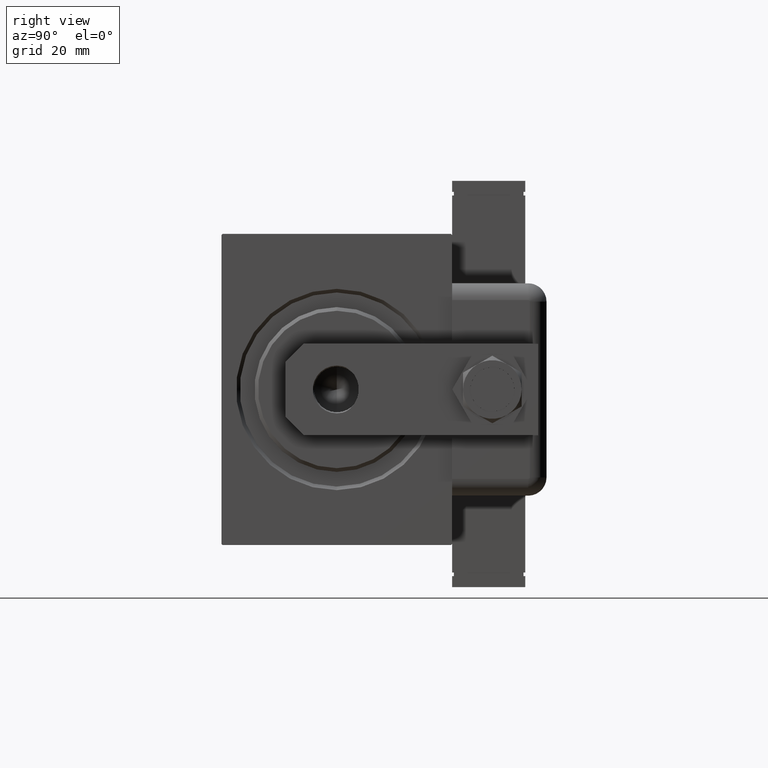
[diagram: clean part render]
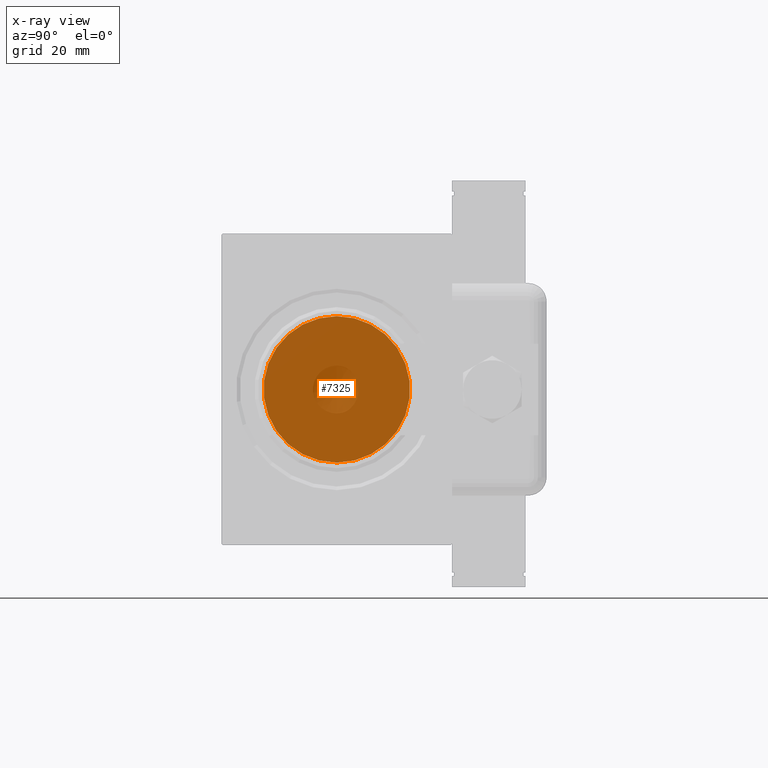
[diagram: x-ray — body ghosted, one internal face saturated and labeled with its STEP entity id]
A machine part, right view, then the same camera in x-ray: the body is ghosted and one INTERNAL B-rep face — a face not visible from any outside direction — is saturated and labeled: STEP entity #7325.
In plain terms, the highlighted planar face has unit normal (1, 0, -0).
Its self-contained STEP definition (entity closure, byte-faithful):
#1036 = CARTESIAN_POINT ( 'NONE',  ( 76.00000000000000000, 0.000000000000000000, 20.00000000000000000 ) ) ;
#1413 = AXIS2_PLACEMENT_3D ( 'NONE', #15484, #37141, #5137 ) ;
#3248 = CIRCLE ( 'NONE', #53333, 20.00000000000000000 ) ;
#5137 = DIRECTION ( 'NONE',  ( 0.000000000000000000, 0.000000000000000000, 1.000000000000000000 ) ) ;
#6293 = CARTESIAN_POINT ( 'NONE',  ( 76.00000000000000000, 0.000000000000000000, 0.000000000000000000 ) ) ;
#7325 = ADVANCED_FACE ( 'NONE', ( #28494 ), #42449, .T. ) ;
#15484 = CARTESIAN_POINT ( 'NONE',  ( 76.00000000000000000, 0.000000000000000000, 0.000000000000000000 ) ) ;
#20798 = DIRECTION ( 'NONE',  ( -1.000000000000000000, 0.000000000000000000, 0.000000000000000000 ) ) ;
#22286 = CIRCLE ( 'NONE', #43151, 20.00000000000000000 ) ;
#25463 = DIRECTION ( 'NONE',  ( -1.000000000000000000, 0.000000000000000000, 0.000000000000000000 ) ) ;
#26039 = CARTESIAN_POINT ( 'NONE',  ( 76.00000000000000000, 0.000000000000000000, 0.000000000000000000 ) ) ;
#28494 = FACE_OUTER_BOUND ( 'NONE', #36451, .T. ) ;
#29972 = DIRECTION ( 'NONE',  ( 0.000000000000000000, 0.000000000000000000, 1.000000000000000000 ) ) ;
#30492 = DIRECTION ( 'NONE',  ( 0.000000000000000000, 0.000000000000000000, 1.000000000000000000 ) ) ;
#34559 = ORIENTED_EDGE ( 'NONE', *, *, #35521, .T. ) ;
#35521 = EDGE_CURVE ( 'NONE', #47244, #58731, #3248, .T. ) ;
#36451 = EDGE_LOOP ( 'NONE', ( #57145, #34559 ) ) ;
#37141 = DIRECTION ( 'NONE',  ( -1.000000000000000000, 0.000000000000000000, 0.000000000000000000 ) ) ;
#42449 = PLANE ( 'NONE',  #1413 ) ;
#43151 = AXIS2_PLACEMENT_3D ( 'NONE', #6293, #20798, #29972 ) ;
#43197 = EDGE_CURVE ( 'NONE', #58731, #47244, #22286, .T. ) ;
#46011 = CARTESIAN_POINT ( 'NONE',  ( 76.00000000000000000, 2.449293598294706513E-15, -20.00000000000000000 ) ) ;
#47244 = VERTEX_POINT ( 'NONE', #46011 ) ;
#53333 = AXIS2_PLACEMENT_3D ( 'NONE', #26039, #25463, #30492 ) ;
#57145 = ORIENTED_EDGE ( 'NONE', *, *, #43197, .T. ) ;
#58731 = VERTEX_POINT ( 'NONE', #1036 ) ;